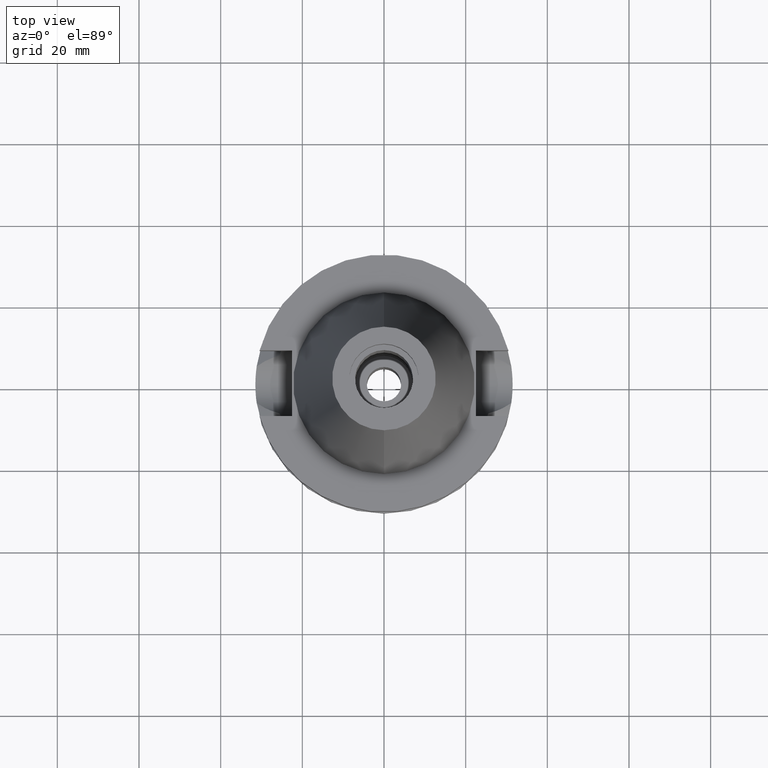
[diagram: clean part render]
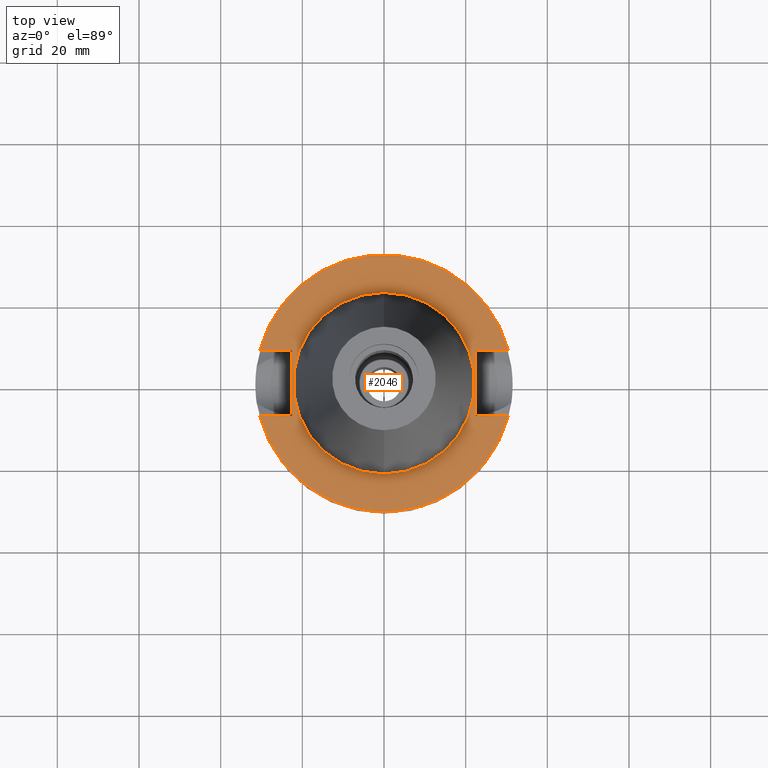
[diagram: same view with one face highlighted and labeled with its STEP entity id]
A machine part, top view. The second image highlights one B-rep face of the part: STEP entity #2046.
In plain terms, the highlighted planar face has unit normal (0, 0, -1).
Its self-contained STEP definition (entity closure, byte-faithful):
#39 = FACE_BOUND ( 'NONE', #361, .T. ) ;
#69 = DIRECTION ( 'NONE',  ( 0.0000000000000000000, 0.0000000000000000000, -1.000000000000000000 ) ) ;
#71 = DIRECTION ( 'NONE',  ( 1.000000000000000000, -3.506251283225999947E-14, 0.0000000000000000000 ) ) ;
#88 = VECTOR ( 'NONE', #1480, 1000.000000000000000 ) ;
#194 = DIRECTION ( 'NONE',  ( 0.0000000000000000000, 0.0000000000000000000, -1.000000000000000000 ) ) ;
#219 = DIRECTION ( 'NONE',  ( 0.0000000000000000000, 1.000000000000000000, 0.0000000000000000000 ) ) ;
#235 = CARTESIAN_POINT ( 'NONE',  ( 22.50000000000000000, 8.050000000000000711, -1.000000000000000000 ) ) ;
#254 = CARTESIAN_POINT ( 'NONE',  ( -30.45402272279000044, 8.050000000000000711, -1.000000000000000000 ) ) ;
#286 = DIRECTION ( 'NONE',  ( 0.0000000000000000000, -1.000000000000000000, 0.0000000000000000000 ) ) ;
#344 = EDGE_CURVE ( 'NONE', #1591, #1992, #2483, .T. ) ;
#361 = EDGE_LOOP ( 'NONE', ( #1047, #573 ) ) ;
#377 = VECTOR ( 'NONE', #1995, 1000.000000000000000 ) ;
#472 = CARTESIAN_POINT ( 'NONE',  ( -22.50000000000000000, -8.050000000000000711, -1.000000000000000000 ) ) ;
#496 = VECTOR ( 'NONE', #2745, 1000.000000000000000 ) ;
#559 = ORIENTED_EDGE ( 'NONE', *, *, #801, .F. ) ;
#562 = PLANE ( 'NONE',  #2374 ) ;
#573 = ORIENTED_EDGE ( 'NONE', *, *, #1663, .F. ) ;
#583 = VECTOR ( 'NONE', #3152, 1000.000000000000000 ) ;
#713 = CARTESIAN_POINT ( 'NONE',  ( 0.0000000000000000000, 2.116618295306000150E-14, -1.000000000000000000 ) ) ;
#729 = LINE ( 'NONE', #235, #583 ) ;
#736 = DIRECTION ( 'NONE',  ( 0.0000000000000000000, 1.000000000000000000, 0.0000000000000000000 ) ) ;
#764 = CARTESIAN_POINT ( 'NONE',  ( -22.50000000000000000, 8.050000000000000711, -1.000000000000000000 ) ) ;
#766 = VERTEX_POINT ( 'NONE', #2695 ) ;
#781 = ORIENTED_EDGE ( 'NONE', *, *, #812, .F. ) ;
#801 = EDGE_CURVE ( 'NONE', #2209, #3114, #2883, .T. ) ;
#803 = CARTESIAN_POINT ( 'NONE',  ( 0.0000000000000000000, 1.212400331155999925E-14, -1.000000000000000000 ) ) ;
#806 = DIRECTION ( 'NONE',  ( 0.0000000000000000000, 1.000000000000000000, 0.0000000000000000000 ) ) ;
#812 = EDGE_CURVE ( 'NONE', #2609, #2209, #729, .T. ) ;
#830 = VERTEX_POINT ( 'NONE', #472 ) ;
#908 = DIRECTION ( 'NONE',  ( 0.0000000000000000000, -1.000000000000000000, 0.0000000000000000000 ) ) ;
#923 = VERTEX_POINT ( 'NONE', #2146 ) ;
#925 = EDGE_CURVE ( 'NONE', #830, #923, #2527, .T. ) ;
#985 = CARTESIAN_POINT ( 'NONE',  ( 0.0000000000000000000, 2.116618295306000150E-14, -1.000000000000000000 ) ) ;
#1000 = ORIENTED_EDGE ( 'NONE', *, *, #1570, .T. ) ;
#1014 = ORIENTED_EDGE ( 'NONE', *, *, #2448, .F. ) ;
#1024 = CARTESIAN_POINT ( 'NONE',  ( 22.50000000000000000, 8.050000000000000711, -1.000000000000000000 ) ) ;
#1047 = ORIENTED_EDGE ( 'NONE', *, *, #1954, .F. ) ;
#1107 = VECTOR ( 'NONE', #71, 1000.000000000000000 ) ;
#1115 = CARTESIAN_POINT ( 'NONE',  ( 0.0000000000000000000, 2.116618295306000150E-14, -1.000000000000000000 ) ) ;
#1164 = AXIS2_PLACEMENT_3D ( 'NONE', #985, #2916, #736 ) ;
#1240 = DIRECTION ( 'NONE',  ( 0.0000000000000000000, -1.000000000000000000, 0.0000000000000000000 ) ) ;
#1307 = AXIS2_PLACEMENT_3D ( 'NONE', #1115, #1400, #908 ) ;
#1383 = VERTEX_POINT ( 'NONE', #1932 ) ;
#1400 = DIRECTION ( 'NONE',  ( 0.0000000000000000000, 0.0000000000000000000, 1.000000000000000000 ) ) ;
#1428 = CIRCLE ( 'NONE', #2431, 31.50000000000000000 ) ;
#1480 = DIRECTION ( 'NONE',  ( 1.000000000000000000, 3.573249715389999860E-14, 0.0000000000000000000 ) ) ;
#1508 = EDGE_CURVE ( 'NONE', #830, #1591, #2219, .T. ) ;
#1562 = ORIENTED_EDGE ( 'NONE', *, *, #3038, .F. ) ;
#1563 = CARTESIAN_POINT ( 'NONE',  ( -22.50000000000000000, 8.050000000000000711, -1.000000000000000000 ) ) ;
#1570 = EDGE_CURVE ( 'NONE', #2609, #766, #2250, .T. ) ;
#1591 = VERTEX_POINT ( 'NONE', #1563 ) ;
#1663 = EDGE_CURVE ( 'NONE', #1383, #1771, #2835, .T. ) ;
#1676 = AXIS2_PLACEMENT_3D ( 'NONE', #1920, #194, #219 ) ;
#1704 = ORIENTED_EDGE ( 'NONE', *, *, #1508, .F. ) ;
#1771 = VERTEX_POINT ( 'NONE', #2554 ) ;
#1777 = CIRCLE ( 'NONE', #1676, 31.50000000000000000 ) ;
#1920 = CARTESIAN_POINT ( 'NONE',  ( 0.0000000000000000000, 2.116618295306000150E-14, -1.000000000000000000 ) ) ;
#1932 = CARTESIAN_POINT ( 'NONE',  ( 0.0000000000000000000, -22.22500000000000142, -1.000000000000000000 ) ) ;
#1954 = EDGE_CURVE ( 'NONE', #1771, #1383, #2634, .T. ) ;
#1971 = FACE_OUTER_BOUND ( 'NONE', #2572, .T. ) ;
#1992 = VERTEX_POINT ( 'NONE', #254 ) ;
#1995 = DIRECTION ( 'NONE',  ( -1.000000000000000000, 3.550916904668000126E-14, 0.0000000000000000000 ) ) ;
#2003 = CARTESIAN_POINT ( 'NONE',  ( -22.50000000000000000, -8.050000000000000711, -1.000000000000000000 ) ) ;
#2009 = CARTESIAN_POINT ( 'NONE',  ( 22.50000000000000000, 8.050000000000000711, -1.000000000000000000 ) ) ;
#2046 = ADVANCED_FACE ( 'NONE', ( #1971, #39 ), #562, .F. ) ;
#2074 = CARTESIAN_POINT ( 'NONE',  ( 22.50000000000000000, -8.050000000000000711, -1.000000000000000000 ) ) ;
#2146 = CARTESIAN_POINT ( 'NONE',  ( -30.45402272279000044, -8.050000000000000711, -1.000000000000000000 ) ) ;
#2201 = CARTESIAN_POINT ( 'NONE',  ( 22.50000000000000000, -8.050000000000000711, -1.000000000000000000 ) ) ;
#2209 = VERTEX_POINT ( 'NONE', #2074 ) ;
#2219 = LINE ( 'NONE', #2003, #2370 ) ;
#2250 = LINE ( 'NONE', #1024, #1107 ) ;
#2370 = VECTOR ( 'NONE', #806, 1000.000000000000000 ) ;
#2374 = AXIS2_PLACEMENT_3D ( 'NONE', #803, #69, #286 ) ;
#2431 = AXIS2_PLACEMENT_3D ( 'NONE', #713, #2707, #1240 ) ;
#2448 = EDGE_CURVE ( 'NONE', #1992, #766, #1777, .T. ) ;
#2483 = LINE ( 'NONE', #764, #496 ) ;
#2498 = CARTESIAN_POINT ( 'NONE',  ( 30.45402272279000044, -8.050000000000000711, -1.000000000000000000 ) ) ;
#2527 = LINE ( 'NONE', #2765, #377 ) ;
#2554 = CARTESIAN_POINT ( 'NONE',  ( 0.0000000000000000000, 22.22500000000000142, -1.000000000000000000 ) ) ;
#2572 = EDGE_LOOP ( 'NONE', ( #2928, #1562, #559, #781, #1000, #1014, #2721, #1704 ) ) ;
#2609 = VERTEX_POINT ( 'NONE', #2009 ) ;
#2634 = CIRCLE ( 'NONE', #1164, 22.22500000000000142 ) ;
#2695 = CARTESIAN_POINT ( 'NONE',  ( 30.45402272279000044, 8.050000000000000711, -1.000000000000000000 ) ) ;
#2707 = DIRECTION ( 'NONE',  ( 0.0000000000000000000, 0.0000000000000000000, -1.000000000000000000 ) ) ;
#2721 = ORIENTED_EDGE ( 'NONE', *, *, #344, .F. ) ;
#2745 = DIRECTION ( 'NONE',  ( -1.000000000000000000, -3.550916904668000126E-14, 0.0000000000000000000 ) ) ;
#2765 = CARTESIAN_POINT ( 'NONE',  ( -22.50000000000000000, -8.050000000000000711, -1.000000000000000000 ) ) ;
#2835 = CIRCLE ( 'NONE', #1307, 22.22500000000000142 ) ;
#2883 = LINE ( 'NONE', #2201, #88 ) ;
#2916 = DIRECTION ( 'NONE',  ( 0.0000000000000000000, 0.0000000000000000000, 1.000000000000000000 ) ) ;
#2928 = ORIENTED_EDGE ( 'NONE', *, *, #925, .T. ) ;
#3038 = EDGE_CURVE ( 'NONE', #3114, #923, #1428, .T. ) ;
#3114 = VERTEX_POINT ( 'NONE', #2498 ) ;
#3152 = DIRECTION ( 'NONE',  ( 0.0000000000000000000, -1.000000000000000000, 0.0000000000000000000 ) ) ;